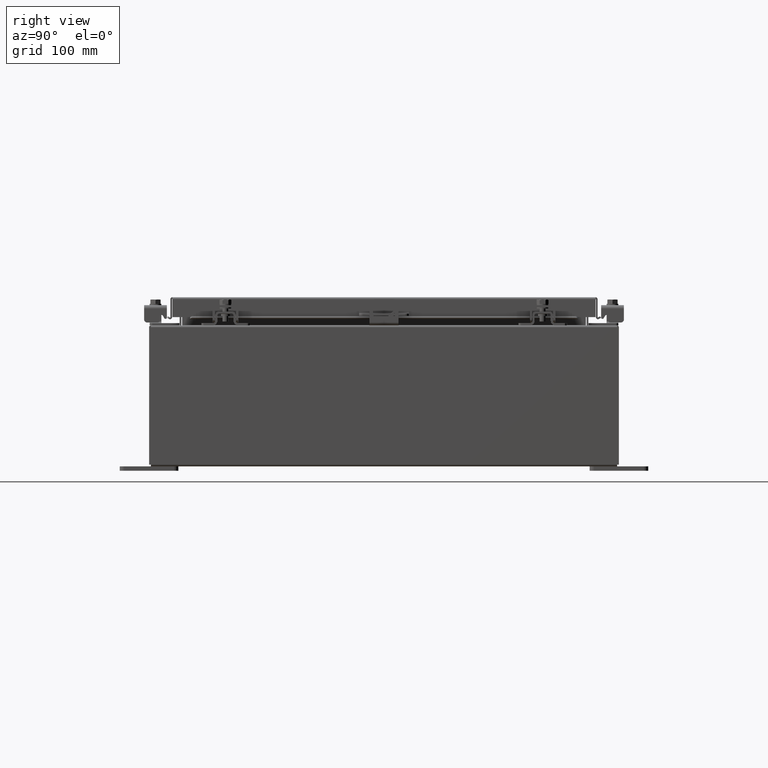
[diagram: clean part render]
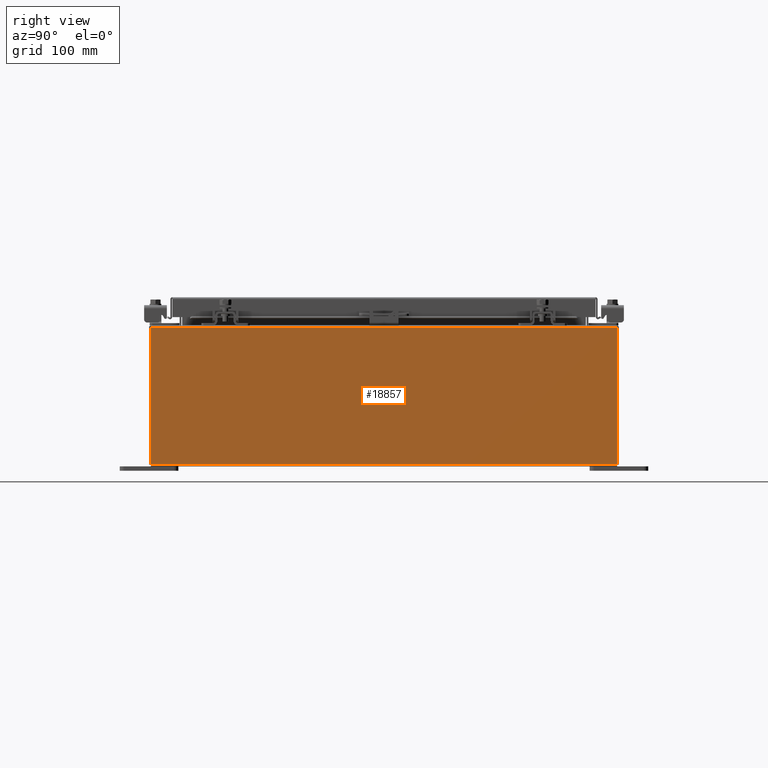
[diagram: same view with one face highlighted and labeled with its STEP entity id]
A machine part, right view. The second image highlights one B-rep face of the part: STEP entity #18857.
In plain terms, the highlighted planar face has unit normal (-1, 0, 0).
Its self-contained STEP definition (entity closure, byte-faithful):
#2348 = LINE ( 'NONE', #9589, #25892 ) ;
#3000 = EDGE_CURVE ( 'NONE', #10033, #25678, #2348, .T. ) ;
#3096 = LINE ( 'NONE', #17188, #21262 ) ;
#4153 = AXIS2_PLACEMENT_3D ( 'NONE', #26516, #12838, #28790 ) ;
#4661 = EDGE_CURVE ( 'NONE', #14562, #18234, #9373, .T. ) ;
#7634 = CARTESIAN_POINT ( 'NONE',  ( 10.00000000000000000, 9.925300000000000000, 0.01299999999999986400 ) ) ;
#7728 = DIRECTION ( 'NONE',  ( -3.319545939341922800E-015, 0.0000000000000000000, -1.000000000000000000 ) ) ;
#7978 = DIRECTION ( 'NONE',  ( -0.0000000000000000000, -1.000000000000000000, -0.0000000000000000000 ) ) ;
#9315 = VECTOR ( 'NONE', #11519, 39.37007874015748100 ) ;
#9373 = LINE ( 'NONE', #18309, #14728 ) ;
#9589 = CARTESIAN_POINT ( 'NONE',  ( 10.00000000000000000, 9.925300000000001800, -3.345627304943080600E-014 ) ) ;
#10033 = VERTEX_POINT ( 'NONE', #7634 ) ;
#11519 = DIRECTION ( 'NONE',  ( -0.0000000000000000000, -1.000000000000000000, -0.0000000000000000000 ) ) ;
#11779 = EDGE_CURVE ( 'NONE', #25678, #14562, #21436, .T. ) ;
#11849 = CARTESIAN_POINT ( 'NONE',  ( 10.00000000000002000, 9.925299999999998200, 5.837599999999999200 ) ) ;
#12838 = DIRECTION ( 'NONE',  ( -1.000000000000000000, 0.0000000000000000000, 3.319545939341922800E-015 ) ) ;
#13783 = EDGE_LOOP ( 'NONE', ( #25178, #22147, #14446, #26675 ) ) ;
#14446 = ORIENTED_EDGE ( 'NONE', *, *, #14713, .F. ) ;
#14562 = VERTEX_POINT ( 'NONE', #16682 ) ;
#14713 = EDGE_CURVE ( 'NONE', #10033, #18234, #3096, .T. ) ;
#14728 = VECTOR ( 'NONE', #7728, 39.37007874015748100 ) ;
#16682 = CARTESIAN_POINT ( 'NONE',  ( 10.00000000000002000, -9.925299999999998200, 5.837599999999999200 ) ) ;
#17188 = CARTESIAN_POINT ( 'NONE',  ( 10.00000000000000000, -9.925299999999998200, 0.01299999999999986400 ) ) ;
#18234 = VERTEX_POINT ( 'NONE', #28273 ) ;
#18309 = CARTESIAN_POINT ( 'NONE',  ( 10.00000000000000000, -9.925299999999998200, -3.345627304943080600E-014 ) ) ;
#18857 = ADVANCED_FACE ( 'NONE', ( #28137 ), #24199, .F. ) ;
#21262 = VECTOR ( 'NONE', #7978, 39.37007874015748100 ) ;
#21436 = LINE ( 'NONE', #27423, #9315 ) ;
#22147 = ORIENTED_EDGE ( 'NONE', *, *, #4661, .T. ) ;
#22961 = DIRECTION ( 'NONE',  ( 3.319545939341922800E-015, 0.0000000000000000000, 1.000000000000000000 ) ) ;
#24199 = PLANE ( 'NONE',  #4153 ) ;
#25178 = ORIENTED_EDGE ( 'NONE', *, *, #11779, .T. ) ;
#25678 = VERTEX_POINT ( 'NONE', #11849 ) ;
#25892 = VECTOR ( 'NONE', #22961, 39.37007874015748100 ) ;
#26516 = CARTESIAN_POINT ( 'NONE',  ( 10.00000000000000000, 0.0000000000000000000, -3.345627304943080600E-014 ) ) ;
#26675 = ORIENTED_EDGE ( 'NONE', *, *, #3000, .T. ) ;
#27423 = CARTESIAN_POINT ( 'NONE',  ( 10.00000000000002000, 9.925299999999998200, 5.837599999999999200 ) ) ;
#28137 = FACE_OUTER_BOUND ( 'NONE', #13783, .T. ) ;
#28273 = CARTESIAN_POINT ( 'NONE',  ( 10.00000000000000000, -9.925299999999998200, 0.01299999999999985900 ) ) ;
#28790 = DIRECTION ( 'NONE',  ( 3.319545939341922800E-015, 0.0000000000000000000, 1.000000000000000000 ) ) ;